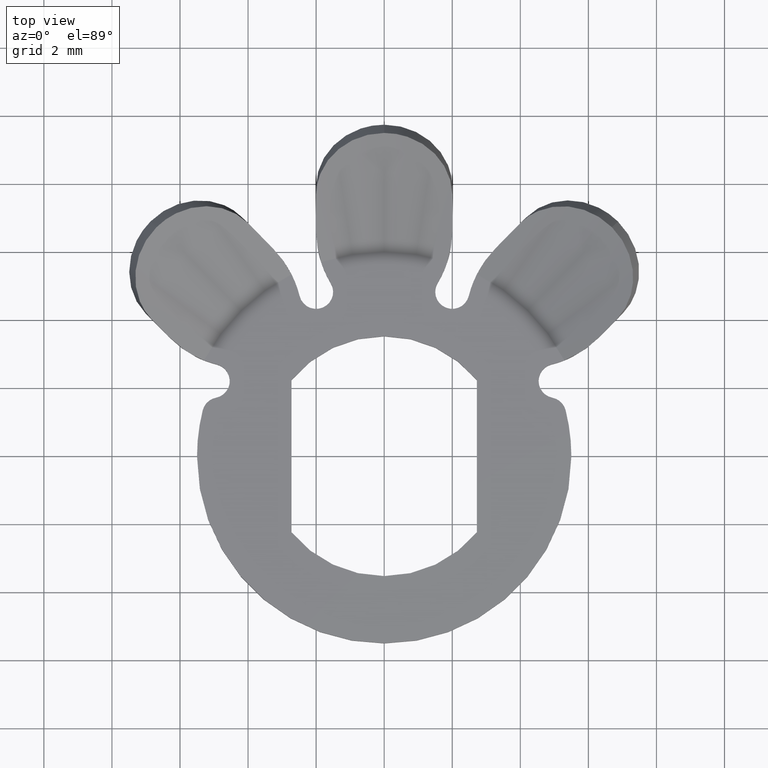
[diagram: clean part render]
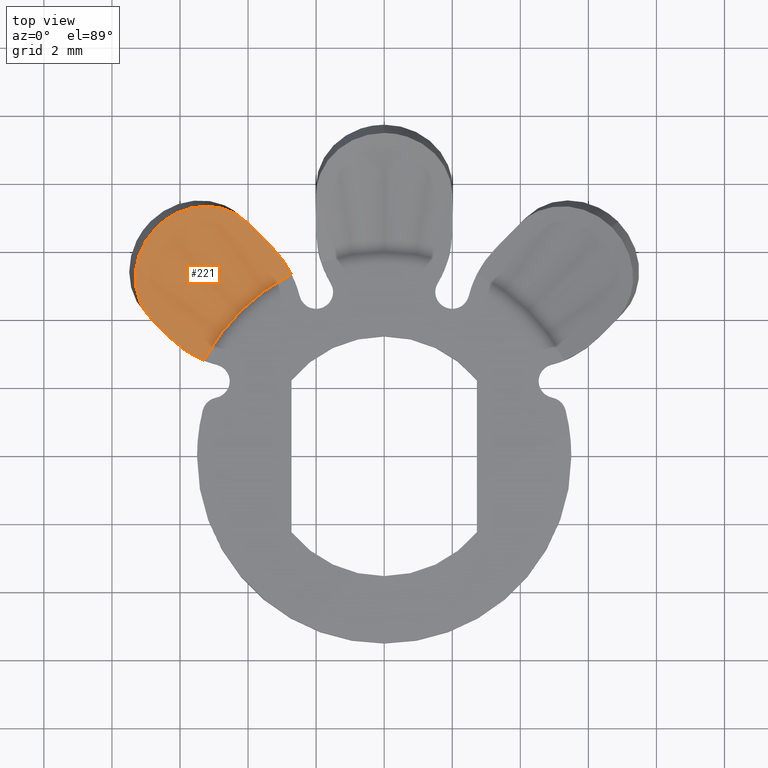
[diagram: same view with one face highlighted and labeled with its STEP entity id]
A machine part, top view. The second image highlights one B-rep face of the part: STEP entity #221.
In plain terms, the highlighted conical surface has half-angle 60 deg.
Its self-contained STEP definition (entity closure, byte-faithful):
#2 = CARTESIAN_POINT ( 'NONE',  ( 0.0000000000000000000, 0.0000000000000000000, 2.500000000000000000 ) ) ;
#10 = EDGE_CURVE ( 'NONE', #437, #523, #1345, .T. ) ;
#16 = CARTESIAN_POINT ( 'NONE',  ( -6.785602367702428400, 6.598658492102501300, 2.500000000000000000 ) ) ;
#42 = DIRECTION ( 'NONE',  ( 1.000000000000000000, 0.0000000000000000000, 0.0000000000000000000 ) ) ;
#59 = VERTEX_POINT ( 'NONE', #1663 ) ;
#74 = AXIS2_PLACEMENT_3D ( 'NONE', #2, #1471, #684 ) ;
#106 = EDGE_CURVE ( 'NONE', #1152, #899, #1218, .T. ) ;
#117 = CARTESIAN_POINT ( 'NONE',  ( -3.274754878395305100, 6.103182003141479400, 1.034766978062239500 ) ) ;
#126 = CARTESIAN_POINT ( 'NONE',  ( -5.815309718154928500, 7.240787538858391800, 2.395803391742829200 ) ) ;
#164 = CARTESIAN_POINT ( 'NONE',  ( -5.297832606445733300, 2.816552799803406800, 0.5000000000000007800 ) ) ;
#185 = CARTESIAN_POINT ( 'NONE',  ( -5.561378550535289700, 7.301903261028265000, 2.333804299388289000 ) ) ;
#221 = ADVANCED_FACE ( 'NONE', ( #1172 ), #383, .F. ) ;
#263 = CARTESIAN_POINT ( 'NONE',  ( -6.836249581037944400, 4.007822456291773200, 1.611083232690730100 ) ) ;
#275 = CARTESIAN_POINT ( 'NONE',  ( -7.288826710052250100, 4.817973679908179800, 2.079678750162725200 ) ) ;
#292 = CARTESIAN_POINT ( 'NONE',  ( -6.869066046199721500, 6.498326528336164600, 2.494706437151261700 ) ) ;
#301 = EDGE_CURVE ( 'NONE', #523, #1648, #700, .T. ) ;
#302 = CARTESIAN_POINT ( 'NONE',  ( -6.311812627318651900, 3.483385502572478500, 1.198147504505426600 ) ) ;
#325 = CARTESIAN_POINT ( 'NONE',  ( -2.724131710075543600, 5.345942987552420300, 0.5000000000000007800 ) ) ;
#366 = CARTESIAN_POINT ( 'NONE',  ( -3.274754878395305100, 6.103182003141479400, 1.034766978062239500 ) ) ;
#378 = CARTESIAN_POINT ( 'NONE',  ( -4.179370484126334200, 6.989449526172233400, 1.737560717398769900 ) ) ;
#383 = CONICAL_SURFACE ( 'NONE', #74, 9.464101615137755300, 1.047197551196598100 ) ;
#388 = CARTESIAN_POINT ( 'NONE',  ( -4.007822456292405600, 6.836249581038576800, 1.611083232691230800 ) ) ;
#403 = CARTESIAN_POINT ( 'NONE',  ( -6.999450886644296200, 4.171023761898129400, 1.740022774548555000 ) ) ;
#437 = VERTEX_POINT ( 'NONE', #1661 ) ;
#441 = EDGE_CURVE ( 'NONE', #59, #1648, #935, .T. ) ;
#485 = CARTESIAN_POINT ( 'NONE',  ( -6.505184876263124100, 6.879075983541806500, 2.499999999999999100 ) ) ;
#523 = VERTEX_POINT ( 'NONE', #1283 ) ;
#543 = CARTESIAN_POINT ( 'NONE',  ( -7.307696177652730700, 5.438393394767830500, 2.294786471088731800 ) ) ;
#561 = B_SPLINE_CURVE_WITH_KNOTS ( 'NONE', 3,
 ( #800, #1636, #663, #117 ),
 .UNSPECIFIED., .F., .F.,
 ( 4, 4 ),
 ( 0.0000000000000000000, 0.001078226562947973000 ),
 .UNSPECIFIED. ) ;
#639 = CARTESIAN_POINT ( 'NONE',  ( -4.705903943745427800, 7.247993834191600400, 2.025010381715033300 ) ) ;
#663 = CARTESIAN_POINT ( 'NONE',  ( -3.050220072630560600, 5.878647197376051500, 0.8592445615671747700 ) ) ;
#675 = CARTESIAN_POINT ( 'NONE',  ( -7.187868214203317200, 5.933555887891320600, 2.416637462941224600 ) ) ;
#684 = DIRECTION ( 'NONE',  ( 1.000000000000000000, 0.0000000000000000000, 0.0000000000000000000 ) ) ;
#700 = B_SPLINE_CURVE_WITH_KNOTS ( 'NONE', 3,
 ( #1596, #16, #292, #803, #1465, #675, #1605, #809, #543, #1731, #275, #1201, #403, #1196 ),
 .UNSPECIFIED., .F., .F.,
 ( 4, 2, 2, 2, 2, 2, 4 ),
 ( 3.355075841687371900E-017, 0.0003909204682637469600, 0.0007818409365274603000, 0.001172761404791173700, 0.001563681873054887200, 0.002345522809582313600, 0.003127363746109741500 ),
 .UNSPECIFIED. ) ;
#710 = ORIENTED_EDGE ( 'NONE', *, *, #301, .T. ) ;
#734 = CARTESIAN_POINT ( 'NONE',  ( -6.661575747080624100, 3.833148622334452000, 1.473079654586211300 ) ) ;
#764 = DIRECTION ( 'NONE',  ( -0.0000000000000000000, -0.0000000000000000000, 1.000000000000000000 ) ) ;
#776 = ORIENTED_EDGE ( 'NONE', *, *, #441, .F. ) ;
#790 = CARTESIAN_POINT ( 'NONE',  ( -3.274754878395305100, 6.103182003141479400, 1.034766978062239500 ) ) ;
#800 = CARTESIAN_POINT ( 'NONE',  ( -2.724131710075543600, 5.345942987552420300, 0.5000000000000007800 ) ) ;
#803 = CARTESIAN_POINT ( 'NONE',  ( -7.016845564140851400, 6.284547061059536900, 2.473884944639372900 ) ) ;
#809 = CARTESIAN_POINT ( 'NONE',  ( -7.289342695961869000, 5.565413308800126300, 2.330390177168766300 ) ) ;
#854 = CARTESIAN_POINT ( 'NONE',  ( -5.188524015098805000, 7.319718341984836000, 2.215609854197239300 ) ) ;
#859 = EDGE_CURVE ( 'NONE', #59, #899, #1126, .T. ) ;
#868 = CARTESIAN_POINT ( 'NONE',  ( -6.692130429902476900, 6.692130429902451100, 2.500000000000000000 ) ) ;
#888 = ORIENTED_EDGE ( 'NONE', *, *, #106, .F. ) ;
#899 = VERTEX_POINT ( 'NONE', #164 ) ;
#906 = CARTESIAN_POINT ( 'NONE',  ( -4.822169240660684900, 7.277508078488854600, 2.075984545090026100 ) ) ;
#920 = ORIENTED_EDGE ( 'NONE', *, *, #859, .T. ) ;
#923 = B_SPLINE_CURVE_WITH_KNOTS ( 'NONE', 3,
 ( #790, #1716, #1185, #388 ),
 .UNSPECIFIED., .F., .F.,
 ( 4, 4 ),
 ( 0.008128351572779999500, 0.009314066995909649200 ),
 .UNSPECIFIED. ) ;
#935 = B_SPLINE_CURVE_WITH_KNOTS ( 'NONE', 3,
 ( #1400, #992, #734, #1667 ),
 .UNSPECIFIED., .F., .F.,
 ( 4, 4 ),
 ( 0.008259923842095232700, 0.009110541437588428800 ),
 .UNSPECIFIED. ) ;
#943 = ORIENTED_EDGE ( 'NONE', *, *, #1211, .T. ) ;
#984 = CARTESIAN_POINT ( 'NONE',  ( -5.063100766750626900, 7.313512240796161000, 2.171214543907708600 ) ) ;
#992 = CARTESIAN_POINT ( 'NONE',  ( -6.486777421696396900, 3.658350296950223500, 1.335398205382311700 ) ) ;
#1016 = CARTESIAN_POINT ( 'NONE',  ( -4.482081198072776800, 7.165973272796049900, 1.915618110957444800 ) ) ;
#1021 = CARTESIAN_POINT ( 'NONE',  ( 0.0000000000000000000, 0.0000000000000000000, 0.5000000000000007800 ) ) ;
#1083 = AXIS2_PLACEMENT_3D ( 'NONE', #1021, #764, #42 ) ;
#1105 = CARTESIAN_POINT ( 'NONE',  ( -4.375059080814954100, 7.113308274505567600, 1.857296533181654700 ) ) ;
#1113 = CARTESIAN_POINT ( 'NONE',  ( -6.284834990958883900, 7.030200043422629700, 2.478378740408393900 ) ) ;
#1126 = B_SPLINE_CURVE_WITH_KNOTS ( 'NONE', 3,
 ( #302, #1676, #1244, #1258 ),
 .UNSPECIFIED., .F., .F.,
 ( 4, 4 ),
 ( 7.260107898018553100E-018, 0.001400082595513165200 ),
 .UNSPECIFIED. ) ;
#1152 = VERTEX_POINT ( 'NONE', #325 ) ;
#1172 = FACE_OUTER_BOUND ( 'NONE', #1376, .T. ) ;
#1185 = CARTESIAN_POINT ( 'NONE',  ( -3.763739811491980000, 6.592166936238152500, 1.418242223980653600 ) ) ;
#1196 = CARTESIAN_POINT ( 'NONE',  ( -6.836249581037944400, 4.007822456291773200, 1.611083232690730100 ) ) ;
#1201 = CARTESIAN_POINT ( 'NONE',  ( -7.126238048403283900, 4.373011118226019200, 1.862415103067756000 ) ) ;
#1211 = EDGE_CURVE ( 'NONE', #1152, #1535, #561, .T. ) ;
#1218 = CIRCLE ( 'NONE', #1083, 6.000000000000000000 ) ;
#1244 = CARTESIAN_POINT ( 'NONE',  ( -5.679972728712679800, 2.968323222470773600, 0.7359422520164273800 ) ) ;
#1253 = ORIENTED_EDGE ( 'NONE', *, *, #1598, .T. ) ;
#1258 = CARTESIAN_POINT ( 'NONE',  ( -5.297832606445733300, 2.816552799803406800, 0.5000000000000007800 ) ) ;
#1283 = CARTESIAN_POINT ( 'NONE',  ( -6.692130429902476900, 6.692130429902451100, 2.500000000000000000 ) ) ;
#1345 = B_SPLINE_CURVE_WITH_KNOTS ( 'NONE', 3,
 ( #1378, #1396, #378, #1105, #1016, #639, #906, #984, #854, #185, #126, #1113, #485, #868 ),
 .UNSPECIFIED., .F., .F.,
 ( 4, 2, 2, 2, 2, 2, 4 ),
 ( 0.0000000000000000000, 0.0003909162933415169800, 0.0007818325866830339600, 0.001172748880024551000, 0.001563665173366067900, 0.002345497760049104200, 0.003127330346732140600 ),
 .UNSPECIFIED. ) ;
#1376 = EDGE_LOOP ( 'NONE', ( #776, #920, #888, #943, #1253, #1602, #710 ) ) ;
#1378 = CARTESIAN_POINT ( 'NONE',  ( -4.007822456292405600, 6.836249581038576800, 1.611083232691230800 ) ) ;
#1396 = CARTESIAN_POINT ( 'NONE',  ( -4.089426343185438700, 6.917853467931608200, 1.675555558759141700 ) ) ;
#1400 = CARTESIAN_POINT ( 'NONE',  ( -6.311812627318651900, 3.483385502572478500, 1.198147504505426600 ) ) ;
#1465 = CARTESIAN_POINT ( 'NONE',  ( -7.081698664477014100, 6.169752947084753600, 2.458100629403696200 ) ) ;
#1471 = DIRECTION ( 'NONE',  ( -0.0000000000000000000, -0.0000000000000000000, 1.000000000000000000 ) ) ;
#1535 = VERTEX_POINT ( 'NONE', #366 ) ;
#1596 = CARTESIAN_POINT ( 'NONE',  ( -6.692130429902476900, 6.692130429902451100, 2.500000000000000000 ) ) ;
#1598 = EDGE_CURVE ( 'NONE', #1535, #437, #923, .T. ) ;
#1602 = ORIENTED_EDGE ( 'NONE', *, *, #10, .T. ) ;
#1605 = CARTESIAN_POINT ( 'NONE',  ( -7.229317186835296600, 5.812647621324432000, 2.391160194118069300 ) ) ;
#1636 = CARTESIAN_POINT ( 'NONE',  ( -2.866975861199281700, 5.625744121824999100, 0.6813772037471207400 ) ) ;
#1648 = VERTEX_POINT ( 'NONE', #263 ) ;
#1661 = CARTESIAN_POINT ( 'NONE',  ( -4.007822456292405600, 6.836249581038576800, 1.611083232691230800 ) ) ;
#1663 = CARTESIAN_POINT ( 'NONE',  ( -6.311812627318651900, 3.483385502572478500, 1.198147504505426600 ) ) ;
#1667 = CARTESIAN_POINT ( 'NONE',  ( -6.836249581037944400, 4.007822456291773200, 1.611083232690730100 ) ) ;
#1676 = CARTESIAN_POINT ( 'NONE',  ( -6.018602666680491700, 3.190175541934317400, 0.9681396749600940100 ) ) ;
#1716 = CARTESIAN_POINT ( 'NONE',  ( -3.519424079005909700, 6.347851203752083100, 1.226028770133797300 ) ) ;
#1731 = CARTESIAN_POINT ( 'NONE',  ( -7.325760527145713600, 5.065527710299841500, 2.176683038389423800 ) ) ;